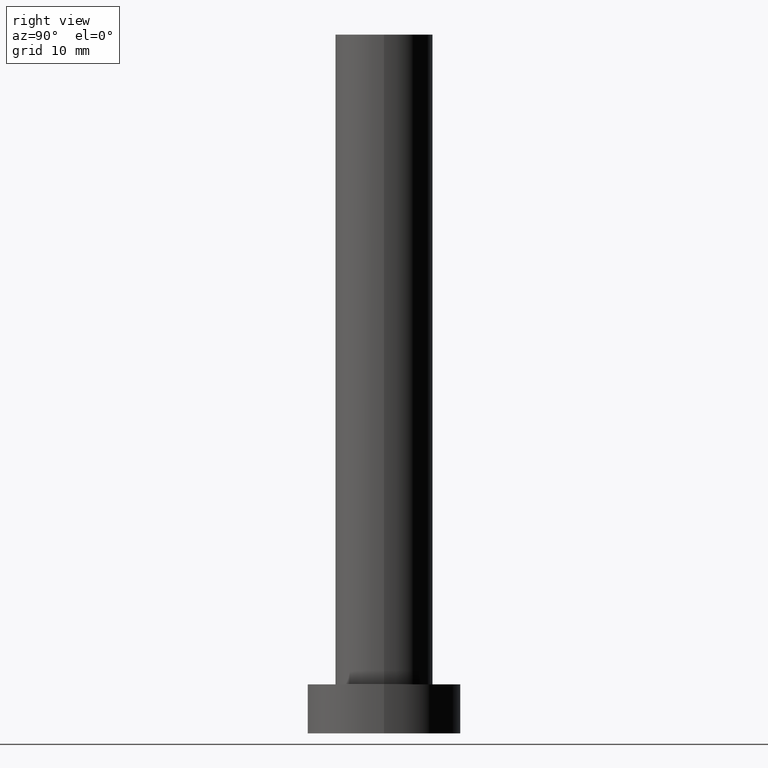
[diagram: clean part render]
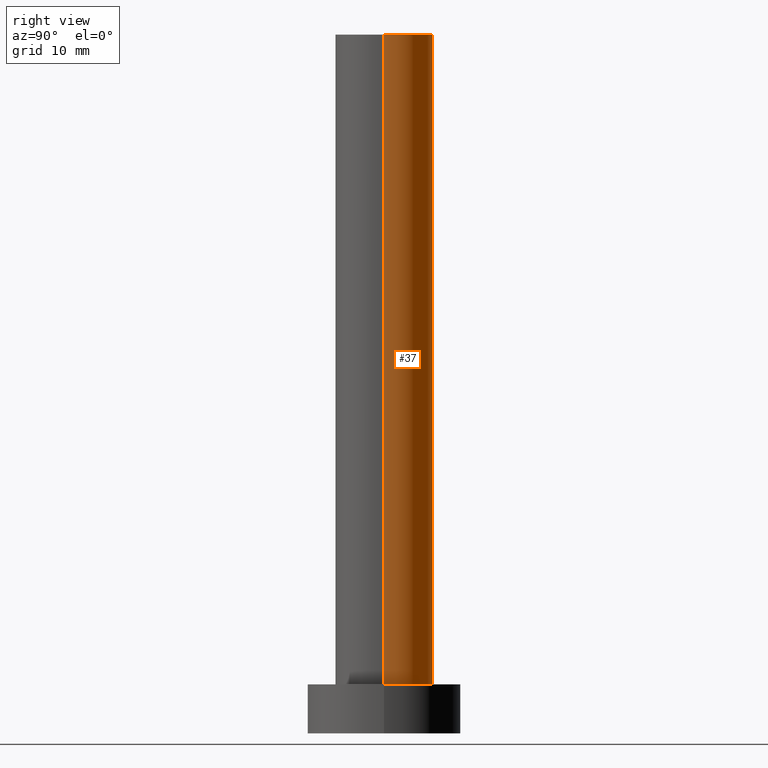
[diagram: same view with one face highlighted and labeled with its STEP entity id]
A machine part, right view. The second image highlights one B-rep face of the part: STEP entity #37.
In plain terms, the highlighted cylindrical surface (partial cylindrical patch) has radius 7 mm, axis along (-0, -0, -1).
Its self-contained STEP definition (entity closure, byte-faithful):
#1 = LINE ( 'NONE', #22, #165 ) ;
#5 = ORIENTED_EDGE ( 'NONE', *, *, #115, .T. ) ;
#6 = VERTEX_POINT ( 'NONE', #105 ) ;
#8 = CYLINDRICAL_SURFACE ( 'NONE', #118, 7.000000000000000888 ) ;
#14 = AXIS2_PLACEMENT_3D ( 'NONE', #83, #179, #99 ) ;
#22 = CARTESIAN_POINT ( 'NONE',  ( -7.000000000000000888, 0.000000000000000000, 100.0000000000000000 ) ) ;
#24 = DIRECTION ( 'NONE',  ( -0.000000000000000000, -0.000000000000000000, -1.000000000000000000 ) ) ;
#25 = CARTESIAN_POINT ( 'NONE',  ( 0.000000000000000000, 0.000000000000000000, 7.000000000000000000 ) ) ;
#28 = ORIENTED_EDGE ( 'NONE', *, *, #55, .F. ) ;
#32 = VECTOR ( 'NONE', #177, 1000.000000000000000 ) ;
#37 = ADVANCED_FACE ( 'NONE', ( #117 ), #8, .T. ) ;
#41 = EDGE_CURVE ( 'NONE', #140, #238, #102, .T. ) ;
#42 = CARTESIAN_POINT ( 'NONE',  ( 0.000000000000000000, 0.000000000000000000, 100.0000000000000000 ) ) ;
#49 = DIRECTION ( 'NONE',  ( 1.000000000000000000, 0.000000000000000000, 0.000000000000000000 ) ) ;
#50 = CARTESIAN_POINT ( 'NONE',  ( -7.000000000000000888, 0.000000000000000000, 7.000000000000000000 ) ) ;
#55 = EDGE_CURVE ( 'NONE', #140, #6, #222, .T. ) ;
#78 = DIRECTION ( 'NONE',  ( -0.000000000000000000, -0.000000000000000000, -1.000000000000000000 ) ) ;
#81 = DIRECTION ( 'NONE',  ( 0.000000000000000000, 0.000000000000000000, 1.000000000000000000 ) ) ;
#83 = CARTESIAN_POINT ( 'NONE',  ( 0.000000000000000000, 0.000000000000000000, 100.0000000000000000 ) ) ;
#87 = CIRCLE ( 'NONE', #145, 7.000000000000000888 ) ;
#89 = CARTESIAN_POINT ( 'NONE',  ( 7.000000000000000888, 8.572527594031472204E-16, 100.0000000000000000 ) ) ;
#96 = EDGE_CURVE ( 'NONE', #6, #237, #1, .T. ) ;
#99 = DIRECTION ( 'NONE',  ( 1.000000000000000000, 0.000000000000000000, 0.000000000000000000 ) ) ;
#102 = LINE ( 'NONE', #221, #32 ) ;
#105 = CARTESIAN_POINT ( 'NONE',  ( -7.000000000000000888, 0.000000000000000000, 100.0000000000000000 ) ) ;
#115 = EDGE_CURVE ( 'NONE', #238, #237, #87, .T. ) ;
#117 = FACE_OUTER_BOUND ( 'NONE', #255, .T. ) ;
#118 = AXIS2_PLACEMENT_3D ( 'NONE', #42, #24, #198 ) ;
#140 = VERTEX_POINT ( 'NONE', #89 ) ;
#145 = AXIS2_PLACEMENT_3D ( 'NONE', #25, #81, #49 ) ;
#165 = VECTOR ( 'NONE', #78, 1000.000000000000000 ) ;
#177 = DIRECTION ( 'NONE',  ( -0.000000000000000000, -0.000000000000000000, -1.000000000000000000 ) ) ;
#179 = DIRECTION ( 'NONE',  ( 0.000000000000000000, 0.000000000000000000, 1.000000000000000000 ) ) ;
#180 = ORIENTED_EDGE ( 'NONE', *, *, #41, .T. ) ;
#198 = DIRECTION ( 'NONE',  ( -1.000000000000000000, 0.000000000000000000, 0.000000000000000000 ) ) ;
#221 = CARTESIAN_POINT ( 'NONE',  ( 7.000000000000000888, 8.572527594031472204E-16, 100.0000000000000000 ) ) ;
#222 = CIRCLE ( 'NONE', #14, 7.000000000000000888 ) ;
#226 = ORIENTED_EDGE ( 'NONE', *, *, #96, .F. ) ;
#229 = CARTESIAN_POINT ( 'NONE',  ( 7.000000000000000888, 8.572527594031472204E-16, 7.000000000000000000 ) ) ;
#237 = VERTEX_POINT ( 'NONE', #50 ) ;
#238 = VERTEX_POINT ( 'NONE', #229 ) ;
#255 = EDGE_LOOP ( 'NONE', ( #28, #180, #5, #226 ) ) ;